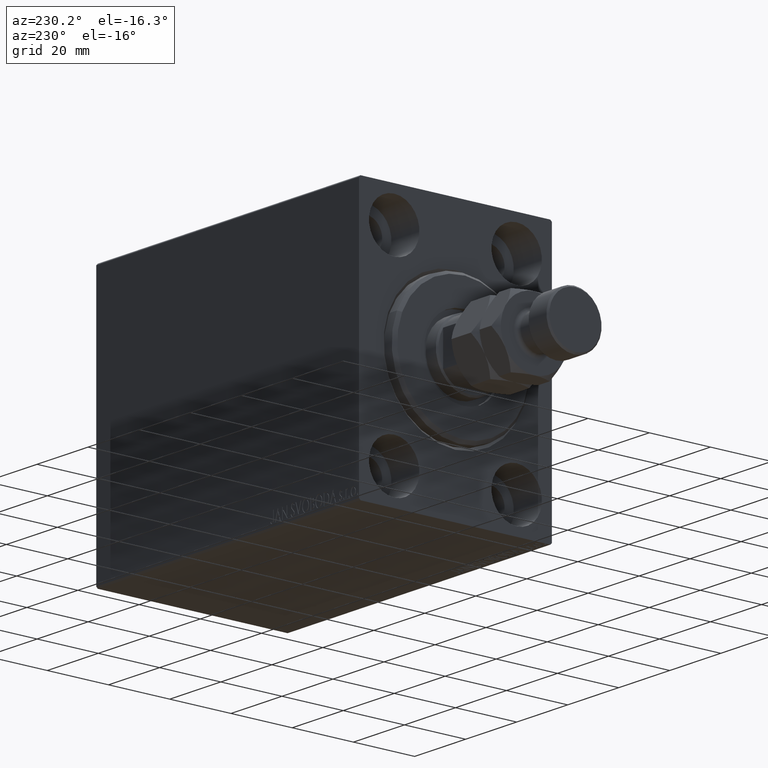
[diagram: clean part render]
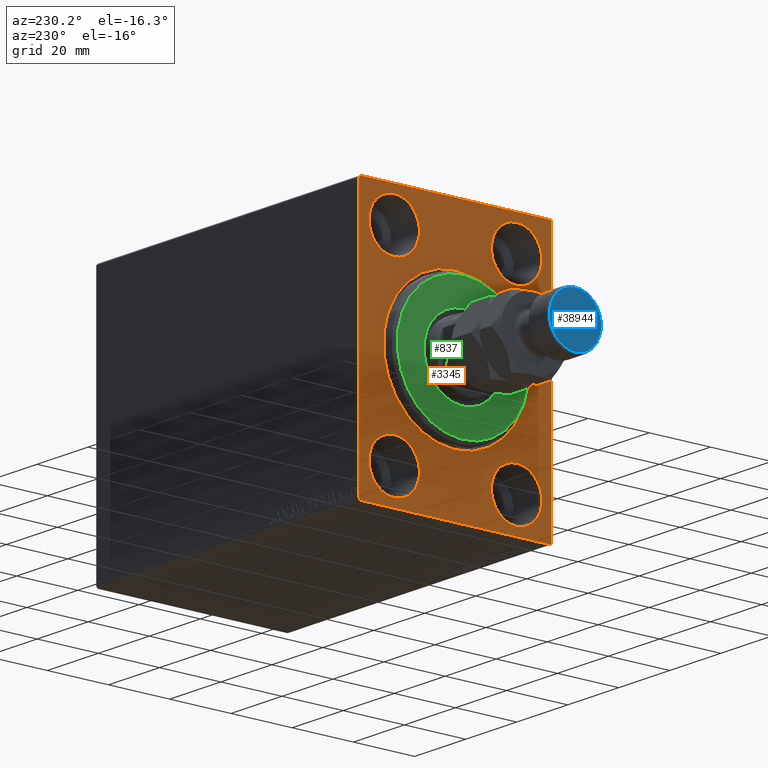
[diagram: same view with three faces highlighted in distinct colors, each labeled with its STEP entity id]
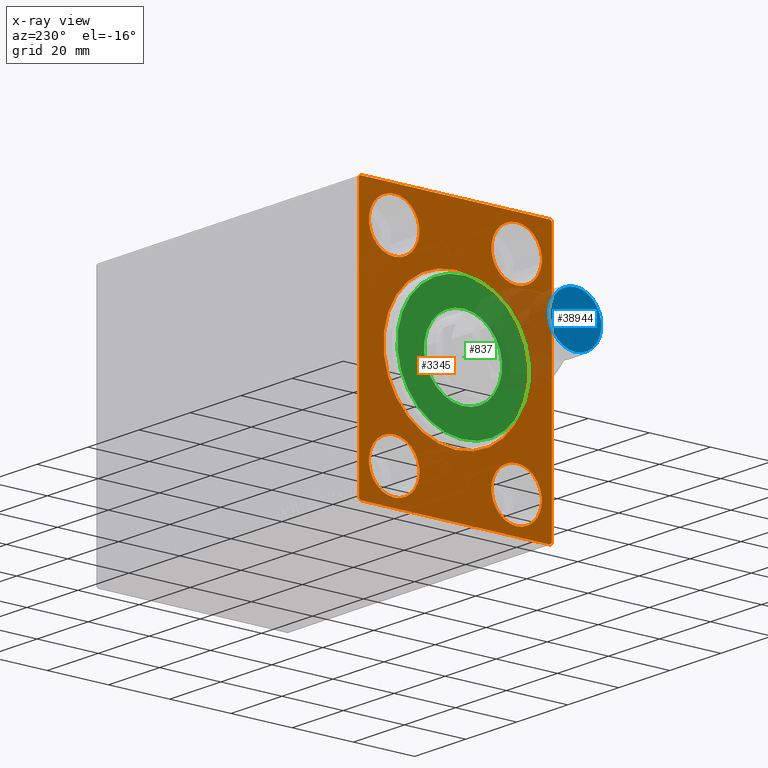
[diagram: x-ray of the same camera — body ghosted, the three highlighted faces saturated]
A machine part, auxiliary view with three faces highlighted in distinct colors.
The next image is the same camera in x-ray (body ghosted, the three faces saturated) — at least one of them is partly hidden behind the body in this view.
Their STEP definitions:

[orange] entity #3345 — the highlighted planar face has unit normal (1, 0, 0).
#266 = ORIENTED_EDGE ( 'NONE', *, *, #15985, .T. ) ;
#1841 = DIRECTION ( 'NONE',  ( 0.000000000000000000, 0.000000000000000000, -1.000000000000000000 ) ) ;
#2068 = CARTESIAN_POINT ( 'NONE',  ( 0.000000000000000000, 19.99999999999999645, -39.74999999999999289 ) ) ;
#2152 = FACE_OUTER_BOUND ( 'NONE', #4016, .T. ) ;
#2922 = DIRECTION ( 'NONE',  ( 0.000000000000000000, 0.000000000000000000, -1.000000000000000000 ) ) ;
#2990 = CARTESIAN_POINT ( 'NONE',  ( 0.000000000000000000, -31.00000000000000000, -42.50000000000000711 ) ) ;
#3070 = DIRECTION ( 'NONE',  ( 0.000000000000000000, 0.000000000000000000, 1.000000000000000000 ) ) ;
#3345 = ADVANCED_FACE ( 'NONE', ( #12928, #44380, #15926, #37499, #29936, #2152 ), #9031, .F. ) ;
#3371 = EDGE_CURVE ( 'NONE', #39111, #31711, #18743, .T. ) ;
#4016 = EDGE_LOOP ( 'NONE', ( #31787, #43621, #22343, #30522, #15786, #7331, #31294, #266 ) ) ;
#4364 = LINE ( 'NONE', #25486, #35849 ) ;
#4437 = ORIENTED_EDGE ( 'NONE', *, *, #36815, .F. ) ;
#4977 = DIRECTION ( 'NONE',  ( -1.000000000000000000, 0.000000000000000000, 0.000000000000000000 ) ) ;
#4990 = DIRECTION ( 'NONE',  ( -1.000000000000000000, 0.000000000000000000, 0.000000000000000000 ) ) ;
#5292 = CARTESIAN_POINT ( 'NONE',  ( 0.000000000000000000, 0.000000000000000000, 0.000000000000000000 ) ) ;
#6127 = VERTEX_POINT ( 'NONE', #16391 ) ;
#6254 = CARTESIAN_POINT ( 'NONE',  ( 0.000000000000000000, -20.00000000000000355, -23.24999999999999289 ) ) ;
#6274 = AXIS2_PLACEMENT_3D ( 'NONE', #30162, #43938, #26937 ) ;
#6333 = DIRECTION ( 'NONE',  ( 1.000000000000000000, 0.000000000000000000, 0.000000000000000000 ) ) ;
#6667 = CARTESIAN_POINT ( 'NONE',  ( 0.000000000000000000, 0.000000000000000000, 23.50000000000001776 ) ) ;
#6736 = EDGE_CURVE ( 'NONE', #10476, #16128, #9833, .T. ) ;
#7331 = ORIENTED_EDGE ( 'NONE', *, *, #37360, .T. ) ;
#8353 = DIRECTION ( 'NONE',  ( -0.000000000000000000, 0.7071067811865474617, -0.7071067811865474617 ) ) ;
#8520 = EDGE_LOOP ( 'NONE', ( #14495, #27472 ) ) ;
#8576 = CARTESIAN_POINT ( 'NONE',  ( 0.000000000000000000, -31.50000000000000000, 41.99999999999997868 ) ) ;
#8605 = ORIENTED_EDGE ( 'NONE', *, *, #10616, .F. ) ;
#8779 = VERTEX_POINT ( 'NONE', #2068 ) ;
#8801 = EDGE_CURVE ( 'NONE', #24381, #29613, #10832, .T. ) ;
#9031 = PLANE ( 'NONE',  #6274 ) ;
#9833 = LINE ( 'NONE', #27075, #22522 ) ;
#10062 = DIRECTION ( 'NONE',  ( 0.000000000000000000, -1.000000000000000000, -2.202823461557850341E-16 ) ) ;
#10457 = DIRECTION ( 'NONE',  ( 0.000000000000000000, 0.000000000000000000, -1.000000000000000000 ) ) ;
#10476 = VERTEX_POINT ( 'NONE', #14179 ) ;
#10616 = EDGE_CURVE ( 'NONE', #31711, #39111, #26276, .T. ) ;
#10832 = CIRCLE ( 'NONE', #26247, 23.50000000000001776 ) ;
#10932 = ORIENTED_EDGE ( 'NONE', *, *, #3371, .F. ) ;
#11308 = DIRECTION ( 'NONE',  ( 0.000000000000000000, -0.7071067811865474617, -0.7071067811865474617 ) ) ;
#11779 = CARTESIAN_POINT ( 'NONE',  ( 0.000000000000000000, 20.00000000000000355, 23.25000000000000355 ) ) ;
#11969 = EDGE_CURVE ( 'NONE', #21284, #14870, #14527, .T. ) ;
#12928 = FACE_BOUND ( 'NONE', #35840, .T. ) ;
#12988 = VECTOR ( 'NONE', #11308, 1000.000000000000114 ) ;
#13399 = CARTESIAN_POINT ( 'NONE',  ( 0.000000000000000000, 19.99999999999999645, -31.49999999999999289 ) ) ;
#13709 = AXIS2_PLACEMENT_3D ( 'NONE', #32781, #4990, #21537 ) ;
#13803 = CIRCLE ( 'NONE', #17474, 23.50000000000001776 ) ;
#13919 = AXIS2_PLACEMENT_3D ( 'NONE', #27775, #41776, #23424 ) ;
#14176 = VERTEX_POINT ( 'NONE', #17365 ) ;
#14179 = CARTESIAN_POINT ( 'NONE',  ( 0.000000000000000000, 30.99999999999998579, 42.50000000000000711 ) ) ;
#14495 = ORIENTED_EDGE ( 'NONE', *, *, #30693, .F. ) ;
#14527 = LINE ( 'NONE', #41397, #33655 ) ;
#14870 = VERTEX_POINT ( 'NONE', #24827 ) ;
#15695 = LINE ( 'NONE', #8576, #26228 ) ;
#15786 = ORIENTED_EDGE ( 'NONE', *, *, #28671, .F. ) ;
#15926 = FACE_BOUND ( 'NONE', #18473, .T. ) ;
#15985 = EDGE_CURVE ( 'NONE', #21284, #6127, #4364, .T. ) ;
#16128 = VERTEX_POINT ( 'NONE', #19499 ) ;
#16152 = DIRECTION ( 'NONE',  ( -0.000000000000000000, 0.7071067811865474617, 0.7071067811865474617 ) ) ;
#16389 = CARTESIAN_POINT ( 'NONE',  ( 0.000000000000000000, -20.00000000000000355, -31.49999999999999289 ) ) ;
#16391 = CARTESIAN_POINT ( 'NONE',  ( 0.000000000000000000, -31.50000000000000000, -42.00000000000000711 ) ) ;
#16825 = EDGE_CURVE ( 'NONE', #8779, #42515, #32938, .T. ) ;
#16983 = VERTEX_POINT ( 'NONE', #11779 ) ;
#17049 = CARTESIAN_POINT ( 'NONE',  ( 0.000000000000000000, -19.99999999999999645, 31.50000000000000000 ) ) ;
#17365 = CARTESIAN_POINT ( 'NONE',  ( 0.000000000000000000, 31.50000000000000000, 41.99999999999999289 ) ) ;
#17474 = AXIS2_PLACEMENT_3D ( 'NONE', #41237, #6333, #10457 ) ;
#17508 = DIRECTION ( 'NONE',  ( -1.000000000000000000, 0.000000000000000000, 0.000000000000000000 ) ) ;
#17693 = DIRECTION ( 'NONE',  ( -1.000000000000000000, 0.000000000000000000, 0.000000000000000000 ) ) ;
#17975 = CARTESIAN_POINT ( 'NONE',  ( 0.000000000000000000, 31.50000000000001421, -42.00000000000000711 ) ) ;
#18473 = EDGE_LOOP ( 'NONE', ( #8605, #10932 ) ) ;
#18530 = DIRECTION ( 'NONE',  ( 0.000000000000000000, 0.000000000000000000, 1.000000000000000000 ) ) ;
#18699 = AXIS2_PLACEMENT_3D ( 'NONE', #16389, #17693, #30403 ) ;
#18743 = CIRCLE ( 'NONE', #44393, 8.249999999999992895 ) ;
#18794 = DIRECTION ( 'NONE',  ( 0.000000000000000000, 0.000000000000000000, 1.000000000000000000 ) ) ;
#18862 = CIRCLE ( 'NONE', #13709, 8.249999999999992895 ) ;
#19003 = AXIS2_PLACEMENT_3D ( 'NONE', #13399, #41191, #3070 ) ;
#19478 = EDGE_CURVE ( 'NONE', #42515, #8779, #33716, .T. ) ;
#19499 = CARTESIAN_POINT ( 'NONE',  ( 0.000000000000000000, -30.99999999999998579, 42.49999999999999289 ) ) ;
#19519 = EDGE_LOOP ( 'NONE', ( #32424, #4437 ) ) ;
#20500 = DIRECTION ( 'NONE',  ( 0.000000000000000000, 0.000000000000000000, 1.000000000000000000 ) ) ;
#21183 = CARTESIAN_POINT ( 'NONE',  ( 0.000000000000000000, -31.50000000000000000, 41.99999999999997868 ) ) ;
#21284 = VERTEX_POINT ( 'NONE', #2990 ) ;
#21426 = ORIENTED_EDGE ( 'NONE', *, *, #19478, .F. ) ;
#21537 = DIRECTION ( 'NONE',  ( 0.000000000000000000, 0.000000000000000000, 1.000000000000000000 ) ) ;
#21554 = CARTESIAN_POINT ( 'NONE',  ( 0.000000000000000000, 20.00000000000000355, 39.74999999999999289 ) ) ;
#21753 = ORIENTED_EDGE ( 'NONE', *, *, #44680, .T. ) ;
#22058 = DIRECTION ( 'NONE',  ( -0.000000000000000000, -0.7071067811865474617, 0.7071067811865474617 ) ) ;
#22324 = CARTESIAN_POINT ( 'NONE',  ( 0.000000000000000000, 31.50000000000001421, -42.50000000000000711 ) ) ;
#22343 = ORIENTED_EDGE ( 'NONE', *, *, #6736, .F. ) ;
#22522 = VECTOR ( 'NONE', #10062, 1000.000000000000000 ) ;
#22709 = CARTESIAN_POINT ( 'NONE',  ( 0.000000000000000000, -20.00000000000000355, -31.49999999999999289 ) ) ;
#23107 = VERTEX_POINT ( 'NONE', #29609 ) ;
#23205 = VERTEX_POINT ( 'NONE', #41074 ) ;
#23424 = DIRECTION ( 'NONE',  ( 0.000000000000000000, 0.000000000000000000, 1.000000000000000000 ) ) ;
#23805 = CARTESIAN_POINT ( 'NONE',  ( 0.000000000000000000, -19.99999999999999645, 39.74999999999999289 ) ) ;
#23939 = CARTESIAN_POINT ( 'NONE',  ( 0.000000000000000000, 19.99999999999999645, -23.24999999999999289 ) ) ;
#24381 = VERTEX_POINT ( 'NONE', #39086 ) ;
#24827 = CARTESIAN_POINT ( 'NONE',  ( 0.000000000000000000, 31.00000000000001421, -42.50000000000000711 ) ) ;
#25486 = CARTESIAN_POINT ( 'NONE',  ( 0.000000000000000000, -31.00000000000000000, -42.50000000000000711 ) ) ;
#25691 = DIRECTION ( 'NONE',  ( -1.000000000000000000, 0.000000000000000000, 0.000000000000000000 ) ) ;
#25897 = ORIENTED_EDGE ( 'NONE', *, *, #16825, .F. ) ;
#25956 = DIRECTION ( 'NONE',  ( 1.000000000000000000, 0.000000000000000000, 0.000000000000000000 ) ) ;
#26129 = CARTESIAN_POINT ( 'NONE',  ( 0.000000000000000000, -19.99999999999999645, 23.25000000000000355 ) ) ;
#26228 = VECTOR ( 'NONE', #16152, 1000.000000000000114 ) ;
#26247 = AXIS2_PLACEMENT_3D ( 'NONE', #5292, #25956, #1841 ) ;
#26276 = CIRCLE ( 'NONE', #26995, 8.249999999999992895 ) ;
#26937 = DIRECTION ( 'NONE',  ( 0.000000000000000000, 0.000000000000000000, -1.000000000000000000 ) ) ;
#26949 = EDGE_CURVE ( 'NONE', #42591, #6127, #28173, .T. ) ;
#26995 = AXIS2_PLACEMENT_3D ( 'NONE', #43544, #4977, #18530 ) ;
#27075 = CARTESIAN_POINT ( 'NONE',  ( 0.000000000000000000, 31.50000000000000000, 42.50000000000000711 ) ) ;
#27294 = CARTESIAN_POINT ( 'NONE',  ( 0.000000000000000000, 20.00000000000000355, 31.50000000000000000 ) ) ;
#27472 = ORIENTED_EDGE ( 'NONE', *, *, #35303, .F. ) ;
#27521 = DIRECTION ( 'NONE',  ( 0.000000000000000000, 0.000000000000000000, 1.000000000000000000 ) ) ;
#27775 = CARTESIAN_POINT ( 'NONE',  ( 0.000000000000000000, 19.99999999999999645, -31.49999999999999289 ) ) ;
#27993 = EDGE_CURVE ( 'NONE', #10476, #14176, #39357, .T. ) ;
#28173 = LINE ( 'NONE', #41488, #44258 ) ;
#28671 = EDGE_CURVE ( 'NONE', #23107, #14176, #42754, .T. ) ;
#28747 = DIRECTION ( 'NONE',  ( 0.000000000000000000, -1.632680918566406300E-16, 1.000000000000000000 ) ) ;
#29609 = CARTESIAN_POINT ( 'NONE',  ( 0.000000000000000000, 31.50000000000001421, -42.00000000000000711 ) ) ;
#29613 = VERTEX_POINT ( 'NONE', #6667 ) ;
#29614 = VECTOR ( 'NONE', #28747, 1000.000000000000000 ) ;
#29936 = FACE_BOUND ( 'NONE', #8520, .T. ) ;
#30162 = CARTESIAN_POINT ( 'NONE',  ( 0.000000000000000000, 0.000000000000000000, 0.000000000000000000 ) ) ;
#30403 = DIRECTION ( 'NONE',  ( 0.000000000000000000, 0.000000000000000000, 1.000000000000000000 ) ) ;
#30522 = ORIENTED_EDGE ( 'NONE', *, *, #27993, .T. ) ;
#30593 = AXIS2_PLACEMENT_3D ( 'NONE', #27294, #34859, #27521 ) ;
#30693 = EDGE_CURVE ( 'NONE', #36006, #23205, #32634, .T. ) ;
#31294 = ORIENTED_EDGE ( 'NONE', *, *, #11969, .F. ) ;
#31317 = CIRCLE ( 'NONE', #30593, 8.249999999999992895 ) ;
#31711 = VERTEX_POINT ( 'NONE', #23805 ) ;
#31765 = LINE ( 'NONE', #17975, #12988 ) ;
#31787 = ORIENTED_EDGE ( 'NONE', *, *, #26949, .F. ) ;
#32424 = ORIENTED_EDGE ( 'NONE', *, *, #36950, .F. ) ;
#32472 = CARTESIAN_POINT ( 'NONE',  ( 0.000000000000000000, 30.99999999999998579, 42.50000000000000711 ) ) ;
#32634 = CIRCLE ( 'NONE', #18699, 8.250000000000000000 ) ;
#32781 = CARTESIAN_POINT ( 'NONE',  ( 0.000000000000000000, 20.00000000000000355, 31.50000000000000000 ) ) ;
#32938 = CIRCLE ( 'NONE', #19003, 8.250000000000000000 ) ;
#33655 = VECTOR ( 'NONE', #41629, 1000.000000000000000 ) ;
#33716 = CIRCLE ( 'NONE', #13919, 8.250000000000000000 ) ;
#34859 = DIRECTION ( 'NONE',  ( -1.000000000000000000, 0.000000000000000000, 0.000000000000000000 ) ) ;
#35303 = EDGE_CURVE ( 'NONE', #23205, #36006, #42294, .T. ) ;
#35840 = EDGE_LOOP ( 'NONE', ( #21753, #44864 ) ) ;
#35849 = VECTOR ( 'NONE', #22058, 1000.000000000000114 ) ;
#36006 = VERTEX_POINT ( 'NONE', #6254 ) ;
#36815 = EDGE_CURVE ( 'NONE', #16983, #40069, #31317, .T. ) ;
#36950 = EDGE_CURVE ( 'NONE', #40069, #16983, #18862, .T. ) ;
#37360 = EDGE_CURVE ( 'NONE', #23107, #14870, #31765, .T. ) ;
#37499 = FACE_BOUND ( 'NONE', #19519, .T. ) ;
#39086 = CARTESIAN_POINT ( 'NONE',  ( 0.000000000000000000, 2.877919977996282293E-15, -23.50000000000001776 ) ) ;
#39111 = VERTEX_POINT ( 'NONE', #26129 ) ;
#39357 = LINE ( 'NONE', #32472, #42790 ) ;
#40069 = VERTEX_POINT ( 'NONE', #21554 ) ;
#41074 = CARTESIAN_POINT ( 'NONE',  ( 0.000000000000000000, -20.00000000000000355, -39.74999999999999289 ) ) ;
#41191 = DIRECTION ( 'NONE',  ( -1.000000000000000000, 0.000000000000000000, 0.000000000000000000 ) ) ;
#41237 = CARTESIAN_POINT ( 'NONE',  ( 0.000000000000000000, 0.000000000000000000, 0.000000000000000000 ) ) ;
#41397 = CARTESIAN_POINT ( 'NONE',  ( 0.000000000000000000, -31.50000000000000000, -42.50000000000000711 ) ) ;
#41488 = CARTESIAN_POINT ( 'NONE',  ( 0.000000000000000000, -31.50000000000000000, 42.49999999999999289 ) ) ;
#41629 = DIRECTION ( 'NONE',  ( 0.000000000000000000, 1.000000000000000000, 0.000000000000000000 ) ) ;
#41776 = DIRECTION ( 'NONE',  ( -1.000000000000000000, 0.000000000000000000, 0.000000000000000000 ) ) ;
#42294 = CIRCLE ( 'NONE', #45202, 8.250000000000000000 ) ;
#42462 = EDGE_CURVE ( 'NONE', #42591, #16128, #15695, .T. ) ;
#42515 = VERTEX_POINT ( 'NONE', #23939 ) ;
#42591 = VERTEX_POINT ( 'NONE', #21183 ) ;
#42754 = LINE ( 'NONE', #22324, #29614 ) ;
#42790 = VECTOR ( 'NONE', #8353, 1000.000000000000114 ) ;
#43544 = CARTESIAN_POINT ( 'NONE',  ( 0.000000000000000000, -19.99999999999999645, 31.50000000000000000 ) ) ;
#43621 = ORIENTED_EDGE ( 'NONE', *, *, #42462, .T. ) ;
#43938 = DIRECTION ( 'NONE',  ( 1.000000000000000000, 0.000000000000000000, 0.000000000000000000 ) ) ;
#44258 = VECTOR ( 'NONE', #2922, 1000.000000000000000 ) ;
#44380 = FACE_BOUND ( 'NONE', #45040, .T. ) ;
#44393 = AXIS2_PLACEMENT_3D ( 'NONE', #17049, #17508, #20500 ) ;
#44680 = EDGE_CURVE ( 'NONE', #29613, #24381, #13803, .T. ) ;
#44864 = ORIENTED_EDGE ( 'NONE', *, *, #8801, .T. ) ;
#45040 = EDGE_LOOP ( 'NONE', ( #21426, #25897 ) ) ;
#45202 = AXIS2_PLACEMENT_3D ( 'NONE', #22709, #25691, #18794 ) ;

[blue] entity #38944 — the highlighted planar face has unit normal (-1, 0, 0).
#2282 = EDGE_CURVE ( 'NONE', #12455, #15621, #34862, .T. ) ;
#5684 = AXIS2_PLACEMENT_3D ( 'NONE', #35785, #7539, #14205 ) ;
#7539 = DIRECTION ( 'NONE',  ( 0.000000000000000000, 0.000000000000000000, 1.000000000000000000 ) ) ;
#8200 = ORIENTED_EDGE ( 'NONE', *, *, #38668, .T. ) ;
#10093 = AXIS2_PLACEMENT_3D ( 'NONE', #42728, #32166, #39049 ) ;
#10210 = CARTESIAN_POINT ( 'NONE',  ( 0.000000000000000000, 0.000000000000000000, 35.00000000000000000 ) ) ;
#12455 = VERTEX_POINT ( 'NONE', #44557 ) ;
#13986 = PLANE ( 'NONE',  #5684 ) ;
#14205 = DIRECTION ( 'NONE',  ( 1.000000000000000000, 0.000000000000000000, -0.000000000000000000 ) ) ;
#15621 = VERTEX_POINT ( 'NONE', #41455 ) ;
#17325 = DIRECTION ( 'NONE',  ( 1.000000000000000000, 0.000000000000000000, 0.000000000000000000 ) ) ;
#24612 = AXIS2_PLACEMENT_3D ( 'NONE', #10210, #41217, #17325 ) ;
#27384 = ORIENTED_EDGE ( 'NONE', *, *, #2282, .T. ) ;
#28893 = EDGE_LOOP ( 'NONE', ( #27384, #8200 ) ) ;
#29906 = CIRCLE ( 'NONE', #10093, 8.499999999999992895 ) ;
#32166 = DIRECTION ( 'NONE',  ( 0.000000000000000000, 0.000000000000000000, 1.000000000000000000 ) ) ;
#34862 = CIRCLE ( 'NONE', #24612, 8.499999999999992895 ) ;
#35106 = FACE_OUTER_BOUND ( 'NONE', #28893, .T. ) ;
#35785 = CARTESIAN_POINT ( 'NONE',  ( 0.000000000000000000, 0.000000000000000000, 35.00000000000000000 ) ) ;
#38668 = EDGE_CURVE ( 'NONE', #15621, #12455, #29906, .T. ) ;
#38944 = ADVANCED_FACE ( 'NONE', ( #35106 ), #13986, .T. ) ;
#39049 = DIRECTION ( 'NONE',  ( 1.000000000000000000, 0.000000000000000000, 0.000000000000000000 ) ) ;
#41217 = DIRECTION ( 'NONE',  ( 0.000000000000000000, 0.000000000000000000, 1.000000000000000000 ) ) ;
#41455 = CARTESIAN_POINT ( 'NONE',  ( 8.499999999999992895, 1.071565949253933532E-15, 35.00000000000000000 ) ) ;
#42728 = CARTESIAN_POINT ( 'NONE',  ( 0.000000000000000000, 0.000000000000000000, 35.00000000000000000 ) ) ;
#44557 = CARTESIAN_POINT ( 'NONE',  ( -8.499999999999992895, 0.000000000000000000, 35.00000000000000000 ) ) ;

[green] entity #837 — the highlighted planar face has unit normal (-1, 0, 0).
#837 = ADVANCED_FACE ( 'NONE', ( #36749, #33300 ), #11493, .T. ) ;
#2632 = DIRECTION ( 'NONE',  ( -1.000000000000000000, 0.000000000000000000, -0.000000000000000000 ) ) ;
#2864 = CARTESIAN_POINT ( 'NONE',  ( 3.000000000000000000, 0.000000000000000000, 0.000000000000000000 ) ) ;
#5094 = EDGE_CURVE ( 'NONE', #23903, #19880, #32012, .T. ) ;
#5293 = CARTESIAN_POINT ( 'NONE',  ( 3.000000000000000000, 0.000000000000000000, 0.000000000000000000 ) ) ;
#7313 = DIRECTION ( 'NONE',  ( 0.000000000000000000, 0.000000000000000000, -1.000000000000000000 ) ) ;
#8369 = AXIS2_PLACEMENT_3D ( 'NONE', #28438, #25900, #7313 ) ;
#9262 = EDGE_CURVE ( 'NONE', #34920, #10870, #36513, .T. ) ;
#9839 = AXIS2_PLACEMENT_3D ( 'NONE', #5293, #18614, #29179 ) ;
#10870 = VERTEX_POINT ( 'NONE', #39600 ) ;
#11493 = PLANE ( 'NONE',  #9839 ) ;
#13372 = EDGE_LOOP ( 'NONE', ( #38593, #16119 ) ) ;
#15123 = AXIS2_PLACEMENT_3D ( 'NONE', #29411, #43412, #39277 ) ;
#15876 = CIRCLE ( 'NONE', #15123, 21.50000000000000355 ) ;
#16119 = ORIENTED_EDGE ( 'NONE', *, *, #28413, .T. ) ;
#16410 = DIRECTION ( 'NONE',  ( 0.000000000000000000, 0.000000000000000000, -1.000000000000000000 ) ) ;
#18614 = DIRECTION ( 'NONE',  ( 1.000000000000000000, -0.000000000000000000, 0.000000000000000000 ) ) ;
#18805 = AXIS2_PLACEMENT_3D ( 'NONE', #28813, #42816, #36386 ) ;
#18906 = AXIS2_PLACEMENT_3D ( 'NONE', #2864, #2632, #16410 ) ;
#19880 = VERTEX_POINT ( 'NONE', #42175 ) ;
#21141 = ORIENTED_EDGE ( 'NONE', *, *, #5094, .T. ) ;
#23562 = CARTESIAN_POINT ( 'NONE',  ( 3.000000000000000000, 0.000000000000000000, 21.50000000000000355 ) ) ;
#23903 = VERTEX_POINT ( 'NONE', #23562 ) ;
#25900 = DIRECTION ( 'NONE',  ( -1.000000000000000000, 0.000000000000000000, -0.000000000000000000 ) ) ;
#26083 = CARTESIAN_POINT ( 'NONE',  ( 3.000000000000000000, 0.000000000000000000, 12.75000000000000000 ) ) ;
#28413 = EDGE_CURVE ( 'NONE', #10870, #34920, #32563, .T. ) ;
#28438 = CARTESIAN_POINT ( 'NONE',  ( 3.000000000000000000, 0.000000000000000000, 0.000000000000000000 ) ) ;
#28813 = CARTESIAN_POINT ( 'NONE',  ( 3.000000000000000000, 0.000000000000000000, 0.000000000000000000 ) ) ;
#29179 = DIRECTION ( 'NONE',  ( 0.000000000000000000, 0.000000000000000000, -1.000000000000000000 ) ) ;
#29411 = CARTESIAN_POINT ( 'NONE',  ( 3.000000000000000000, 0.000000000000000000, 0.000000000000000000 ) ) ;
#32012 = CIRCLE ( 'NONE', #18805, 21.50000000000000355 ) ;
#32563 = CIRCLE ( 'NONE', #8369, 12.75000000000000000 ) ;
#33300 = FACE_BOUND ( 'NONE', #13372, .T. ) ;
#33899 = EDGE_LOOP ( 'NONE', ( #21141, #36595 ) ) ;
#34314 = EDGE_CURVE ( 'NONE', #19880, #23903, #15876, .T. ) ;
#34920 = VERTEX_POINT ( 'NONE', #26083 ) ;
#36386 = DIRECTION ( 'NONE',  ( 0.000000000000000000, 0.000000000000000000, -1.000000000000000000 ) ) ;
#36513 = CIRCLE ( 'NONE', #18906, 12.75000000000000000 ) ;
#36595 = ORIENTED_EDGE ( 'NONE', *, *, #34314, .T. ) ;
#36749 = FACE_OUTER_BOUND ( 'NONE', #33899, .T. ) ;
#38593 = ORIENTED_EDGE ( 'NONE', *, *, #9262, .T. ) ;
#39277 = DIRECTION ( 'NONE',  ( 0.000000000000000000, 0.000000000000000000, -1.000000000000000000 ) ) ;
#39600 = CARTESIAN_POINT ( 'NONE',  ( 3.000000000000000000, 1.561424668912874914E-15, -12.75000000000000000 ) ) ;
#42175 = CARTESIAN_POINT ( 'NONE',  ( 3.000000000000000000, 2.694222958124177598E-15, -21.50000000000000355 ) ) ;
#42816 = DIRECTION ( 'NONE',  ( 1.000000000000000000, -0.000000000000000000, 0.000000000000000000 ) ) ;
#43412 = DIRECTION ( 'NONE',  ( 1.000000000000000000, -0.000000000000000000, 0.000000000000000000 ) ) ;